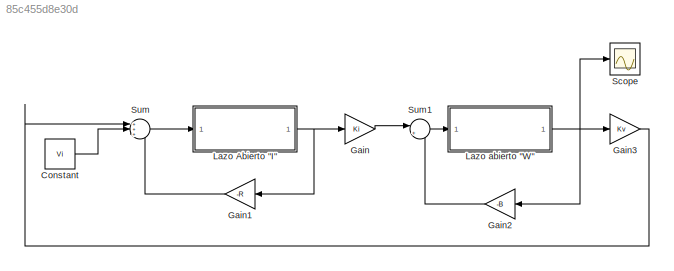
MODEL slx_85c455d8e30d
KIND model
BLOCK [Constant] Constant
  Value = Vi
BLOCK [Gain] Gain
  Gain = Ki
  OutDataTypeStr = Inherit: Inherit via internal rule
  ParamDataTypeStr = Inherit: Inherit via internal rule
  SaturateOnIntegerOverflow = off
BLOCK [Gain] Gain1
  Gain = -R
  OutDataTypeStr = Inherit: Inherit via internal rule
  ParamDataTypeStr = Inherit: Inherit via internal rule
  SaturateOnIntegerOverflow = off
BLOCK [Gain] Gain2
  Gain = -B
  OutDataTypeStr = Inherit: Inherit via internal rule
  ParamDataTypeStr = Inherit: Inherit via internal rule
  SaturateOnIntegerOverflow = off
BLOCK [Gain] Gain3
  Gain = Kv
  OutDataTypeStr = Inherit: Inherit via internal rule
  ParamDataTypeStr = Inherit: Inherit via internal rule
  SaturateOnIntegerOverflow = off
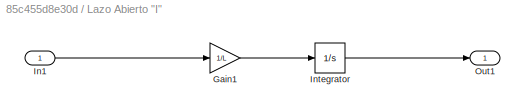
BLOCK [SubSystem] Lazo Abierto "I"
  Ports = [1, 1]
  RequestExecContextInheritance = off
BLOCK [Gain] Lazo Abierto "I"/Gain1
  Gain = 1/L
  OutDataTypeStr = Inherit: Inherit via internal rule
  ParamDataTypeStr = Inherit: Inherit via internal rule
  SaturateOnIntegerOverflow = off
BLOCK [Inport] Lazo Abierto "I"/In1
  IconDisplay = Port number
BLOCK [Integrator] Lazo Abierto "I"/Integrator
  Ports = [1, 1]
BLOCK [Outport] Lazo Abierto "I"/Out1
  IconDisplay = Port number
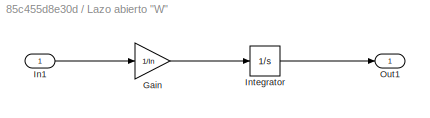
BLOCK [SubSystem] Lazo abierto "W"
  Ports = [1, 1]
  RequestExecContextInheritance = off
BLOCK [Gain] Lazo abierto "W"/Gain
  Gain = 1/In
  OutDataTypeStr = Inherit: Inherit via internal rule
  ParamDataTypeStr = Inherit: Inherit via internal rule
  SaturateOnIntegerOverflow = off
BLOCK [Inport] Lazo abierto "W"/In1
  IconDisplay = Port number
BLOCK [Integrator] Lazo abierto "W"/Integrator
  Ports = [1, 1]
BLOCK [Outport] Lazo abierto "W"/Out1
  IconDisplay = Port number
BLOCK [Scope] Scope
  Floating = off
  NumInputPorts = 1
  Ports = [1]
  ShowLegends = off
BLOCK [Sum] Sum
  IconShape = round
  InputSameDT = off
  Inputs = +++
  OutDataTypeStr = Inherit: Inherit via internal rule
  Ports = [3, 1]
  SaturateOnIntegerOverflow = off
BLOCK [Sum] Sum1
  IconShape = round
  InputSameDT = off
  Inputs = |++
  OutDataTypeStr = Inherit: Inherit via internal rule
  Ports = [2, 1]
  SaturateOnIntegerOverflow = off
LINE Constant:1 -> Sum:2
LINE Gain1:1 -> Sum:3
LINE Gain2:1 -> Sum1:2
LINE Gain3:1 -> Sum:1
LINE Gain:1 -> Sum1:1
LINE Lazo Abierto "I"/Gain1:1 -> Lazo Abierto "I"/Integrator:1
LINE Lazo Abierto "I"/In1:1 -> Lazo Abierto "I"/Gain1:1
LINE Lazo Abierto "I"/Integrator:1 -> Lazo Abierto "I"/Out1:1
NET Lazo Abierto "I":1 -> Gain1:1, Gain:1
LINE Lazo abierto "W"/Gain:1 -> Lazo abierto "W"/Integrator:1
LINE Lazo abierto "W"/In1:1 -> Lazo abierto "W"/Gain:1
LINE Lazo abierto "W"/Integrator:1 -> Lazo abierto "W"/Out1:1
NET Lazo abierto "W":1 -> Gain2:1, Gain3:1, Scope:1
LINE Sum1:1 -> Lazo abierto "W":1
LINE Sum:1 -> Lazo Abierto "I":1
note: NET lines group one-source signal fan-out (src -> all destinations, sorted); 1:1 wires keep LINE
